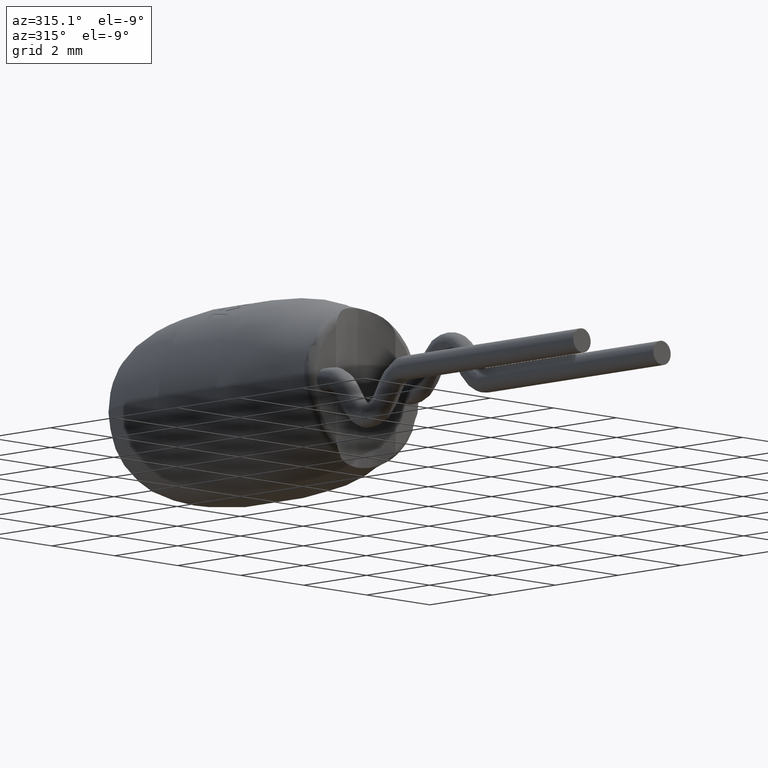
[diagram: clean part render]
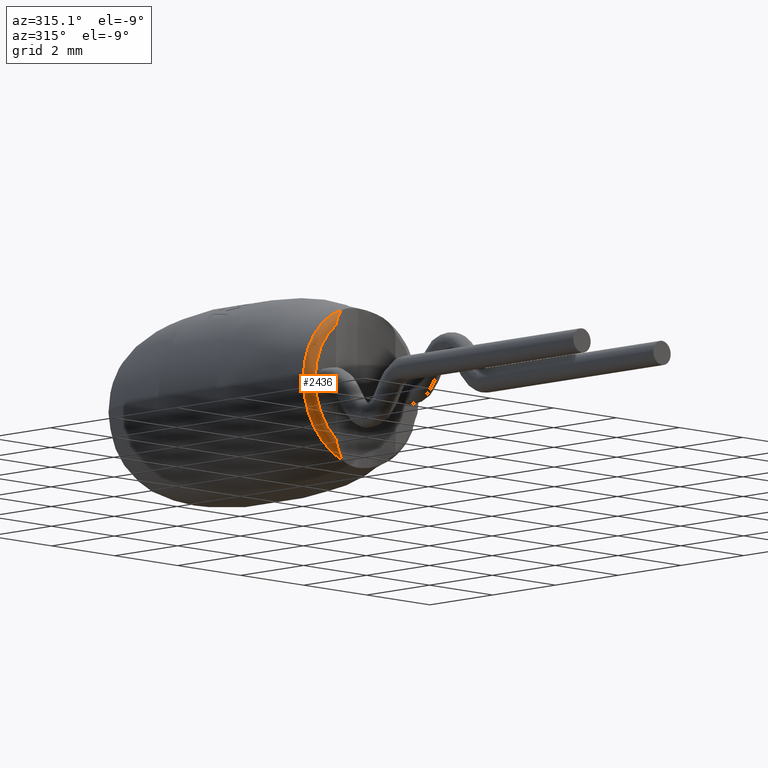
[diagram: same view with one face highlighted and labeled with its STEP entity id]
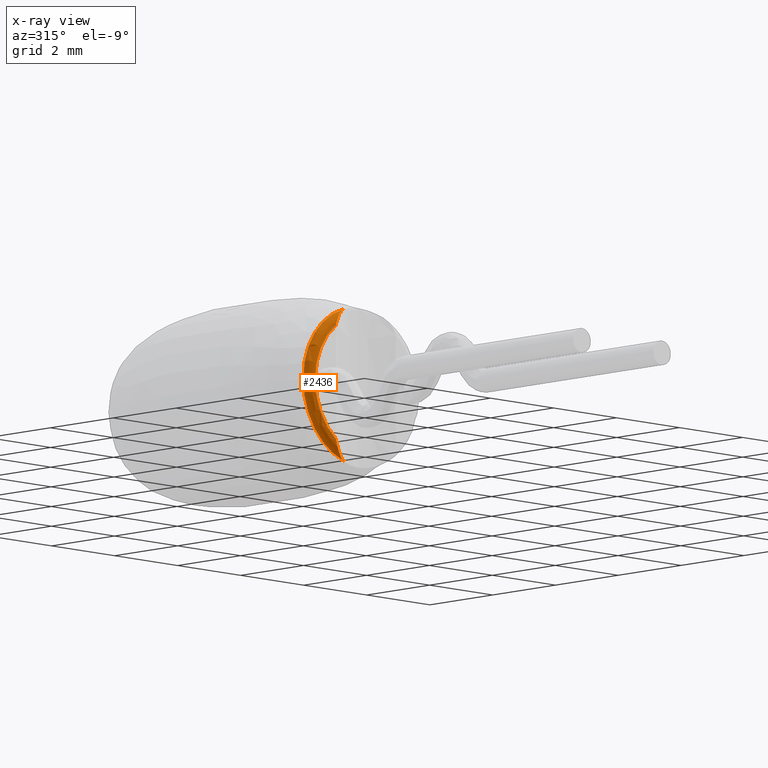
[diagram: x-ray of the same camera — body ghosted, the highlighted face saturated]
A machine part, auxiliary view. The second image highlights one B-rep face of the part: STEP entity #2436.
The next image is the same camera in x-ray: the body ghosted, the highlighted face saturated — about 0% of this face is hidden behind the body in this view.
In plain terms, the highlighted toroidal blend (fillet) surface has major radius 1.6061 mm and minor (blend) radius 0.2 mm.
Its self-contained STEP definition (entity closure, byte-faithful):
#6 = AXIS2_PLACEMENT_3D ( 'NONE', #2957, #918, #2985 ) ;
#16 = CARTESIAN_POINT ( 'NONE',  ( -0.9331751165654904600, 0.003036089100036562400, -1.353305856251038500 ) ) ;
#29 = VERTEX_POINT ( 'NONE', #511 ) ;
#95 = B_SPLINE_CURVE_WITH_KNOTS ( 'NONE', 3,
 ( #5223, #295, #4325, #732, #1049, #1889, #3900, #5172, #3547, #1103, #3109, #2269 ),
 .UNSPECIFIED., .F., .F.,
 ( 4, 2, 2, 2, 2, 4 ),
 ( 0.0000000000000000000, 0.0001651657658153937100, 0.0003303315316307874100, 0.0004954972974461810900, 0.0005780801803538780100, 0.0006606630632615748300 ),
 .UNSPECIFIED. ) ;
#152 = CARTESIAN_POINT ( 'NONE',  ( -0.9450000000000004000, -8.034147796649942400E-017, 1.298703362207638500 ) ) ;
#207 = DIRECTION ( 'NONE',  ( -0.0000000000000000000, -1.000000000000000000, -0.0000000000000000000 ) ) ;
#295 = CARTESIAN_POINT ( 'NONE',  ( -0.5643514661827846400, 0.1644042656384927800, 1.713797243910247600 ) ) ;
#438 = DIRECTION ( 'NONE',  ( 0.0000000000000000000, 1.000000000000000000, 0.0000000000000000000 ) ) ;
#511 = CARTESIAN_POINT ( 'NONE',  ( -0.5133288383304959200, 0.1795771798991588600, 1.730556491400163000 ) ) ;
#593 = AXIS2_PLACEMENT_3D ( 'NONE', #4359, #207, #3471 ) ;
#621 = VERTEX_POINT ( 'NONE', #4865 ) ;
#732 = CARTESIAN_POINT ( 'NONE',  ( -0.7012177364199203600, 0.1066783328483827300, 1.641527209937103400 ) ) ;
#918 = DIRECTION ( 'NONE',  ( -0.0000000000000000000, -1.000000000000000000, -0.0000000000000000000 ) ) ;
#991 = B_SPLINE_CURVE_WITH_KNOTS ( 'NONE', 3,
 ( #5253, #2313, #16, #3653, #2909, #3420, #1999, #1546, #1616, #1279, #4520, #3733 ),
 .UNSPECIFIED., .F., .F.,
 ( 4, 2, 2, 2, 2, 4 ),
 ( 1.292547027032276200E-021, 8.341009470142666200E-005, 0.0001668201894028533200, 0.0003336403788057071900, 0.0005004605682085610300, 0.0006672807576114148100 ),
 .UNSPECIFIED. ) ;
#1049 = CARTESIAN_POINT ( 'NONE',  ( -0.7424343545573052200, 0.08511002192699705600, 1.609407765078982600 ) ) ;
#1103 = CARTESIAN_POINT ( 'NONE',  ( -0.9332289614117967900, 0.003019515692278386500, 1.353199669935314400 ) ) ;
#1274 = ORIENTED_EDGE ( 'NONE', *, *, #1681, .F. ) ;
#1279 = CARTESIAN_POINT ( 'NONE',  ( -0.6123825782337052300, 0.1462793015810688300, -1.693362789893713400 ) ) ;
#1333 = VERTEX_POINT ( 'NONE', #152 ) ;
#1473 = ORIENTED_EDGE ( 'NONE', *, *, #2687, .F. ) ;
#1480 = EDGE_CURVE ( 'NONE', #2521, #2281, #991, .T. ) ;
#1502 = CARTESIAN_POINT ( 'NONE',  ( -0.5133288383304972500, 0.1795771798991587200, -1.730556491400162800 ) ) ;
#1546 = CARTESIAN_POINT ( 'NONE',  ( -0.7426218343887215400, 0.08501382272821758600, -1.609238424125000400 ) ) ;
#1582 = CARTESIAN_POINT ( 'NONE',  ( 0.0000000000000000000, 0.1795771798991586700, 0.0000000000000000000 ) ) ;
#1616 = CARTESIAN_POINT ( 'NONE',  ( -0.7016634268890897800, 0.1064680367465622200, -1.641237954293133700 ) ) ;
#1681 = EDGE_CURVE ( 'NONE', #1333, #2521, #4238, .T. ) ;
#1889 = CARTESIAN_POINT ( 'NONE',  ( -0.8159431808224155700, 0.04806136151654443600, 1.535965821654984100 ) ) ;
#1999 = CARTESIAN_POINT ( 'NONE',  ( -0.8159907662831501500, 0.04803909260887376900, -1.535900253535763100 ) ) ;
#2074 = DIRECTION ( 'NONE',  ( 0.0000000000000000000, 0.0000000000000000000, -1.000000000000000000 ) ) ;
#2269 = CARTESIAN_POINT ( 'NONE',  ( -0.9450000000000004000, -8.034147796649942400E-017, 1.298703362207638500 ) ) ;
#2281 = VERTEX_POINT ( 'NONE', #1502 ) ;
#2313 = CARTESIAN_POINT ( 'NONE',  ( -0.9450000000000005100, -4.097521882342677900E-017, -1.327271640297230200 ) ) ;
#2360 = FACE_OUTER_BOUND ( 'NONE', #2669, .T. ) ;
#2387 = ORIENTED_EDGE ( 'NONE', *, *, #4076, .F. ) ;
#2436 = ADVANCED_FACE ( 'NONE', ( #2360 ), #4222, .T. ) ;
#2476 = ORIENTED_EDGE ( 'NONE', *, *, #3560, .F. ) ;
#2521 = VERTEX_POINT ( 'NONE', #3153 ) ;
#2669 = EDGE_LOOP ( 'NONE', ( #2476, #2387, #1473, #3738, #1274 ) ) ;
#2687 = EDGE_CURVE ( 'NONE', #2281, #621, #4934, .T. ) ;
#2856 = DIRECTION ( 'NONE',  ( 0.0000000000000000000, 1.000000000000000000, 0.0000000000000000000 ) ) ;
#2874 = CARTESIAN_POINT ( 'NONE',  ( 0.0000000000000000000, 0.1795771798991586700, 0.0000000000000000000 ) ) ;
#2909 = CARTESIAN_POINT ( 'NONE',  ( -0.8948161669125850300, 0.01510788229834288100, -1.426172992854867600 ) ) ;
#2957 = CARTESIAN_POINT ( 'NONE',  ( 0.0000000000000000000, 0.0000000000000000000, 0.0000000000000000000 ) ) ;
#2985 = DIRECTION ( 'NONE',  ( 8.881784197001252300E-016, 0.0000000000000000000, 1.000000000000000000 ) ) ;
#3109 = CARTESIAN_POINT ( 'NONE',  ( -0.9450000000000006200, -1.615715346887577900E-016, 1.326914711069836100 ) ) ;
#3153 = CARTESIAN_POINT ( 'NONE',  ( -0.9450000000000004000, -8.034147796649942400E-017, -1.298703362207638300 ) ) ;
#3226 = DIRECTION ( 'NONE',  ( 0.0000000000000000000, 0.0000000000000000000, -1.000000000000000000 ) ) ;
#3285 = CIRCLE ( 'NONE', #3761, 1.805085113281082600 ) ;
#3390 = AXIS2_PLACEMENT_3D ( 'NONE', #2874, #438, #2074 ) ;
#3420 = CARTESIAN_POINT ( 'NONE',  ( -0.8497331110789910800, 0.03228448042958342900, -1.494059751418271000 ) ) ;
#3471 = DIRECTION ( 'NONE',  ( 0.0000000000000000000, 0.0000000000000000000, -1.000000000000000000 ) ) ;
#3547 = CARTESIAN_POINT ( 'NONE',  ( -0.9088333569326448900, 0.01041122421637816700, 1.402942503291953600 ) ) ;
#3560 = EDGE_CURVE ( 'NONE', #29, #1333, #95, .T. ) ;
#3653 = CARTESIAN_POINT ( 'NONE',  ( -0.9089094541664577400, 0.01038790871748705000, -1.402790940882172400 ) ) ;
#3733 = CARTESIAN_POINT ( 'NONE',  ( -0.5133288383304972500, 0.1795771798991587200, -1.730556491400162800 ) ) ;
#3738 = ORIENTED_EDGE ( 'NONE', *, *, #1480, .F. ) ;
#3761 = AXIS2_PLACEMENT_3D ( 'NONE', #1582, #2856, #3226 ) ;
#3900 = CARTESIAN_POINT ( 'NONE',  ( -0.8492104790411736400, 0.03249961548703229900, 1.494783282349201800 ) ) ;
#4076 = EDGE_CURVE ( 'NONE', #621, #29, #3285, .T. ) ;
#4222 = TOROIDAL_SURFACE ( 'NONE', #593, 1.606130574707245000, 0.2000000000000000100 ) ;
#4238 = CIRCLE ( 'NONE', #6, 1.606130574707245000 ) ;
#4325 = CARTESIAN_POINT ( 'NONE',  ( -0.6123130015679652000, 0.1462987013151785300, 1.693374193768174800 ) ) ;
#4359 = CARTESIAN_POINT ( 'NONE',  ( 0.0000000000000000000, 0.2000000000000000100, 0.0000000000000000000 ) ) ;
#4520 = CARTESIAN_POINT ( 'NONE',  ( -0.5643285472357665300, 0.1644110811874502400, -1.713804772027114800 ) ) ;
#4865 = CARTESIAN_POINT ( 'NONE',  ( -1.805085113281082600, 0.1795771798991586700, 0.0000000000000000000 ) ) ;
#4934 = CIRCLE ( 'NONE', #3390, 1.805085113281082600 ) ;
#5172 = CARTESIAN_POINT ( 'NONE',  ( -0.8946438677224534100, 0.01516563581300814400, 1.426463719435622900 ) ) ;
#5223 = CARTESIAN_POINT ( 'NONE',  ( -0.5133288383304959200, 0.1795771798991588600, 1.730556491400163000 ) ) ;
#5253 = CARTESIAN_POINT ( 'NONE',  ( -0.9450000000000004000, -8.034147796649942400E-017, -1.298703362207638300 ) ) ;